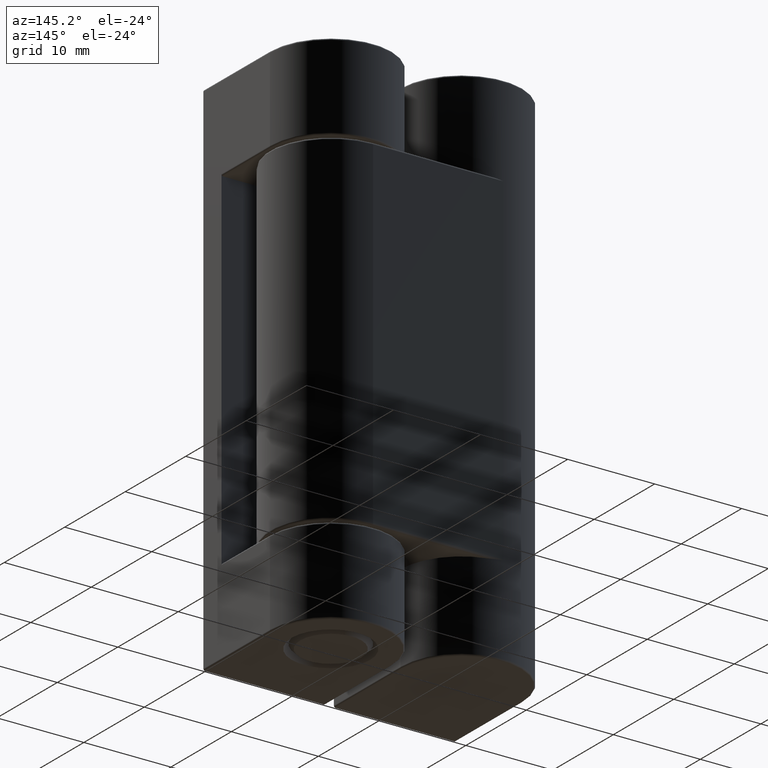
[diagram: clean part render]
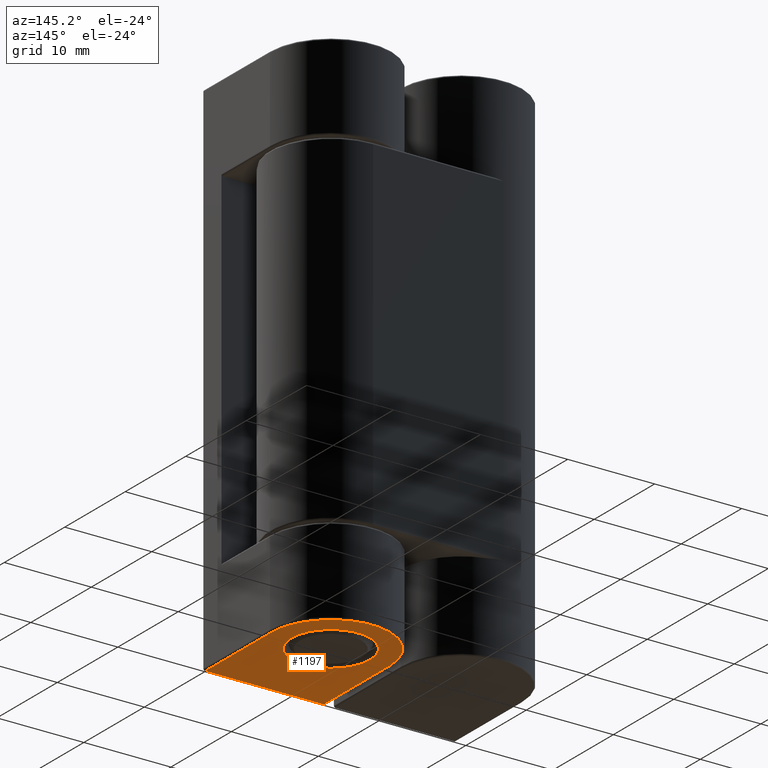
[diagram: same view with one face highlighted and labeled with its STEP entity id]
A machine part, auxiliary view. The second image highlights one B-rep face of the part: STEP entity #1197.
In plain terms, the highlighted planar face has unit normal (-0, -0, 1).
Its self-contained STEP definition (entity closure, byte-faithful):
#48=FACE_BOUND('',#233,.T.);
#86=PLANE('',#1311);
#147=FACE_OUTER_BOUND('',#232,.T.);
#232=EDGE_LOOP('',(#1003,#1004,#1005,#1006));
#233=EDGE_LOOP('',(#1007));
#340=LINE('',#2056,#431);
#341=LINE('',#2058,#432);
#342=LINE('',#2060,#433);
#431=VECTOR('',#1605,11.);
#432=VECTOR('',#1606,13.6);
#433=VECTOR('',#1607,11.);
#494=CIRCLE('',#1308,4.5);
#496=CIRCLE('',#1312,6.8);
#596=VERTEX_POINT('',#2048);
#598=VERTEX_POINT('',#2054);
#599=VERTEX_POINT('',#2055);
#600=VERTEX_POINT('',#2057);
#601=VERTEX_POINT('',#2059);
#739=EDGE_CURVE('',#596,#596,#494,.T.);
#741=EDGE_CURVE('',#598,#599,#340,.T.);
#742=EDGE_CURVE('',#598,#600,#341,.T.);
#743=EDGE_CURVE('',#601,#600,#342,.T.);
#744=EDGE_CURVE('',#599,#601,#496,.T.);
#1003=ORIENTED_EDGE('',*,*,#741,.F.);
#1004=ORIENTED_EDGE('',*,*,#742,.T.);
#1005=ORIENTED_EDGE('',*,*,#743,.F.);
#1006=ORIENTED_EDGE('',*,*,#744,.F.);
#1007=ORIENTED_EDGE('',*,*,#739,.F.);
#1197=ADVANCED_FACE('',(#147,#48),#86,.F.);
#1308=AXIS2_PLACEMENT_3D('',#2049,#1597,#1598);
#1311=AXIS2_PLACEMENT_3D('',#2053,#1603,#1604);
#1312=AXIS2_PLACEMENT_3D('',#2061,#1608,#1609);
#1597=DIRECTION('center_axis',(0.,0.,-1.));
#1598=DIRECTION('ref_axis',(-1.,0.,0.));
#1603=DIRECTION('center_axis',(0.,0.,1.));
#1604=DIRECTION('ref_axis',(1.,0.,0.));
#1605=DIRECTION('',(-1.00929365875014E-16,1.,0.));
#1606=DIRECTION('',(-1.,-1.83697019872103E-16,0.));
#1607=DIRECTION('',(3.02788097625043E-16,-1.,0.));
#1608=DIRECTION('center_axis',(0.,0.,1.));
#1609=DIRECTION('ref_axis',(-2.83276944882399E-16,1.,0.));
#2048=CARTESIAN_POINT('',(4.5,11.,-60.));
#2049=CARTESIAN_POINT('Origin',(-2.22863648897513E-15,11.,-60.));
#2053=CARTESIAN_POINT('Origin',(-2.44961832829998E-15,11.,-60.));
#2054=CARTESIAN_POINT('',(6.8,2.53501887423502E-15,-60.));
#2055=CARTESIAN_POINT('',(6.8,11.,-60.));
#2056=CARTESIAN_POINT('',(6.8,11.,-60.));
#2057=CARTESIAN_POINT('',(-6.8,3.67394039744207E-17,-60.));
#2058=CARTESIAN_POINT('',(-7.,0.,-60.));
#2059=CARTESIAN_POINT('',(-6.8,11.,-60.));
#2060=CARTESIAN_POINT('',(-6.8,5.5,-60.));
#2061=CARTESIAN_POINT('Origin',(-2.22863648897513E-15,11.,-60.));